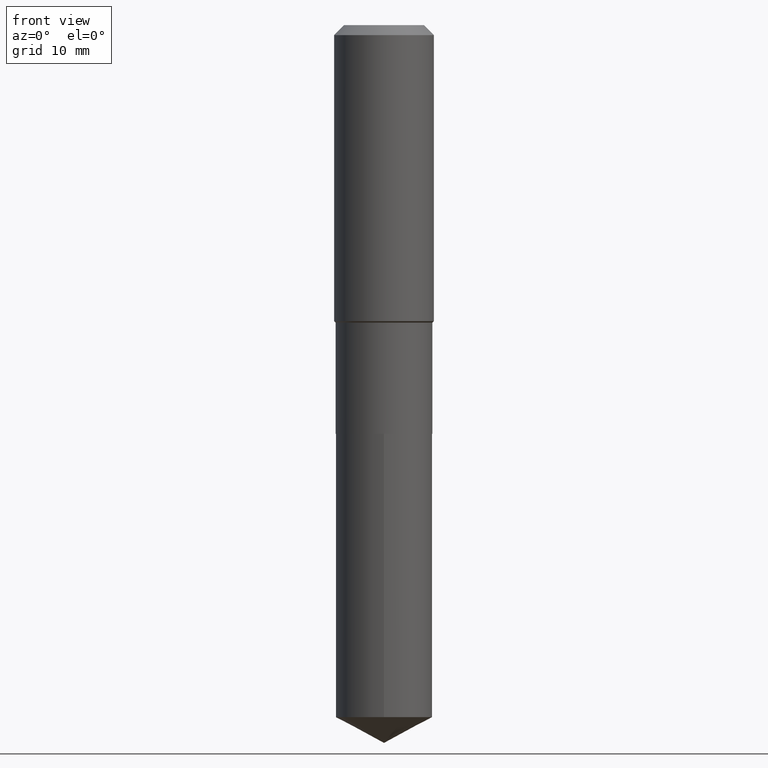
[diagram: clean part render]
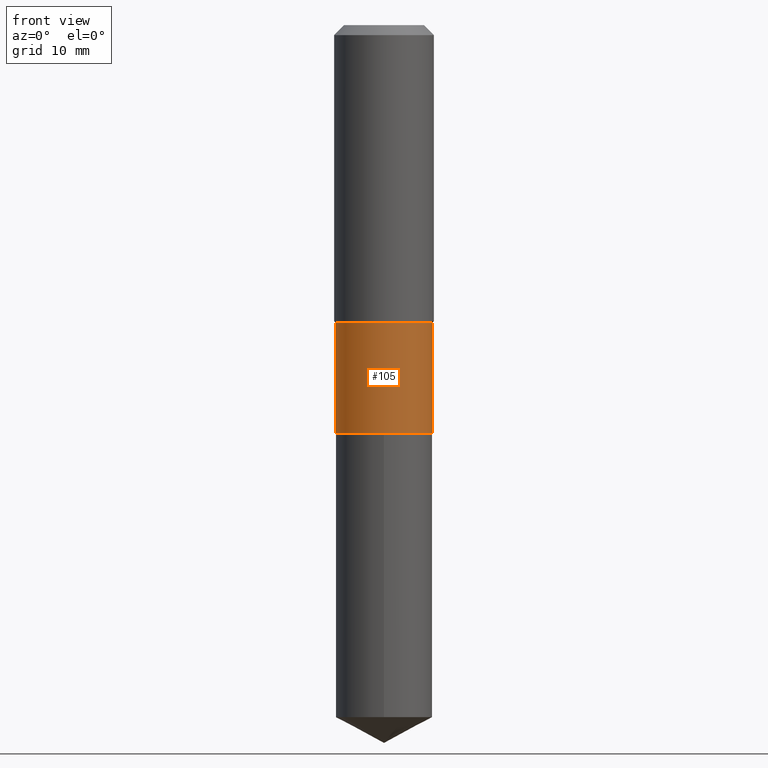
[diagram: same view with one face highlighted and labeled with its STEP entity id]
A machine part, front view. The second image highlights one B-rep face of the part: STEP entity #105.
In plain terms, the highlighted cylindrical surface (partial cylindrical patch) has radius 7.7495 mm, axis along (-0, 0, 1).
Its self-contained STEP definition (entity closure, byte-faithful):
#18 = CYLINDRICAL_SURFACE ( 'NONE', #340, 0.3050999999999999268 ) ;
#21 = CIRCLE ( 'NONE', #221, 0.3050999999999999268 ) ;
#25 = CARTESIAN_POINT ( 'NONE',  ( 6.304907676106516855E-29, -9.001737187805394412E-15, -2.578199999999999381 ) ) ;
#30 = CARTESIAN_POINT ( 'NONE',  ( -0.3050999999999999268, 2.167865886804065147E-15, -1.500767096036771338E-29 ) ) ;
#32 = EDGE_CURVE ( 'NONE', #106, #141, #478, .T. ) ;
#49 = ORIENTED_EDGE ( 'NONE', *, *, #424, .F. ) ;
#70 = AXIS2_PLACEMENT_3D ( 'NONE', #25, #480, #140 ) ;
#90 = CARTESIAN_POINT ( 'NONE',  ( -0.3050999999999999268, -5.609757943602924419E-15, -1.876999999999999780 ) ) ;
#105 = ADVANCED_FACE ( 'NONE', ( #162 ), #18, .T. ) ;
#106 = VERTEX_POINT ( 'NONE', #300 ) ;
#131 = DIRECTION ( 'NONE',  ( 1.000000000000000000, -6.982962677686265133E-15, 4.876176775795935793E-29 ) ) ;
#140 = DIRECTION ( 'NONE',  ( 1.000000000000000000, -6.982962677686264344E-15, 0.000000000000000000 ) ) ;
#141 = VERTEX_POINT ( 'NONE', #90 ) ;
#153 = CARTESIAN_POINT ( 'NONE',  ( 0.3050999999999999268, -2.130501912962079080E-15, 1.487721534295339594E-29 ) ) ;
#156 = LINE ( 'NONE', #153, #400 ) ;
#162 = FACE_OUTER_BOUND ( 'NONE', #261, .T. ) ;
#199 = DIRECTION ( 'NONE',  ( -2.445468806185136597E-29, 3.491481338843145583E-15, 1.000000000000000000 ) ) ;
#217 = ORIENTED_EDGE ( 'NONE', *, *, #461, .T. ) ;
#221 = AXIS2_PLACEMENT_3D ( 'NONE', #446, #490, #286 ) ;
#247 = DIRECTION ( 'NONE',  ( -2.445468806185136877E-29, 3.491481338843145188E-15, 1.000000000000000000 ) ) ;
#261 = EDGE_LOOP ( 'NONE', ( #445, #482, #217, #49 ) ) ;
#272 = CARTESIAN_POINT ( 'NONE',  ( 0.000000000000000000, 0.000000000000000000, 0.000000000000000000 ) ) ;
#286 = DIRECTION ( 'NONE',  ( 1.000000000000000000, -6.982962677686266711E-15, 0.000000000000000000 ) ) ;
#300 = CARTESIAN_POINT ( 'NONE',  ( -0.3050999999999999823, -5.609757943602922842E-15, -2.578199999999999381 ) ) ;
#304 = VECTOR ( 'NONE', #247, 39.37007874015748143 ) ;
#309 = CARTESIAN_POINT ( 'NONE',  ( 0.3050999999999999268, -8.684012385970661829E-15, -1.876999999999999780 ) ) ;
#340 = AXIS2_PLACEMENT_3D ( 'NONE', #272, #199, #131 ) ;
#371 = VERTEX_POINT ( 'NONE', #309 ) ;
#377 = VERTEX_POINT ( 'NONE', #390 ) ;
#380 = EDGE_CURVE ( 'NONE', #106, #377, #489, .T. ) ;
#390 = CARTESIAN_POINT ( 'NONE',  ( 0.3050999999999999268, -1.113223910076747310E-14, -2.578199999999999381 ) ) ;
#400 = VECTOR ( 'NONE', #453, 39.37007874015748143 ) ;
#424 = EDGE_CURVE ( 'NONE', #141, #371, #21, .T. ) ;
#445 = ORIENTED_EDGE ( 'NONE', *, *, #32, .F. ) ;
#446 = CARTESIAN_POINT ( 'NONE',  ( 4.590144949209500643E-29, -6.553510473008583144E-15, -1.876999999999999780 ) ) ;
#453 = DIRECTION ( 'NONE',  ( -2.445468806185136877E-29, 3.491481338843145188E-15, 1.000000000000000000 ) ) ;
#461 = EDGE_CURVE ( 'NONE', #377, #371, #156, .T. ) ;
#478 = LINE ( 'NONE', #30, #304 ) ;
#480 = DIRECTION ( 'NONE',  ( -2.445468806185136597E-29, 3.491481338843145583E-15, 1.000000000000000000 ) ) ;
#482 = ORIENTED_EDGE ( 'NONE', *, *, #380, .T. ) ;
#489 = CIRCLE ( 'NONE', #70, 0.3050999999999999268 ) ;
#490 = DIRECTION ( 'NONE',  ( -2.445468806185136597E-29, 3.491481338843145583E-15, 1.000000000000000000 ) ) ;